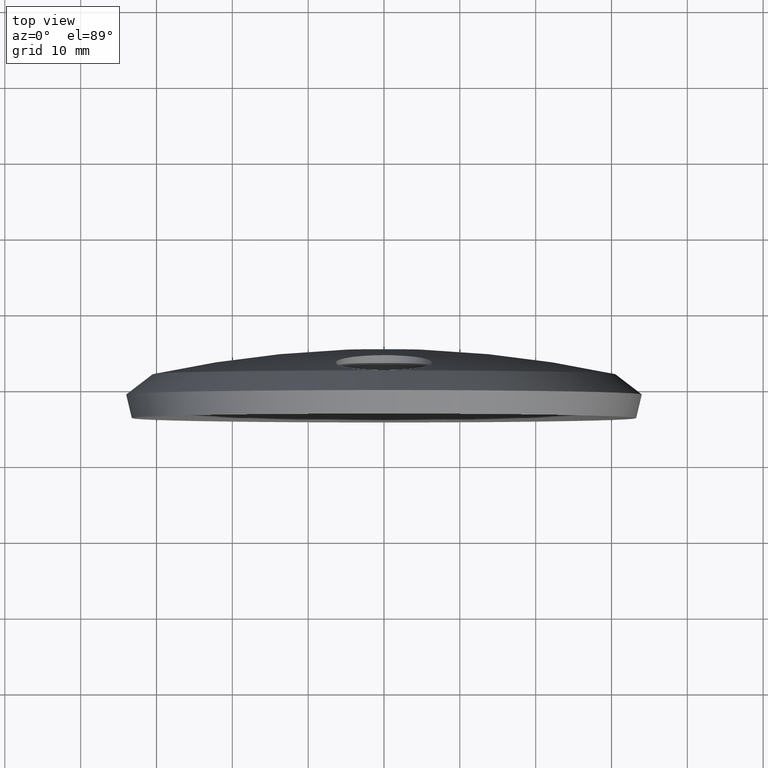
[diagram: clean part render]
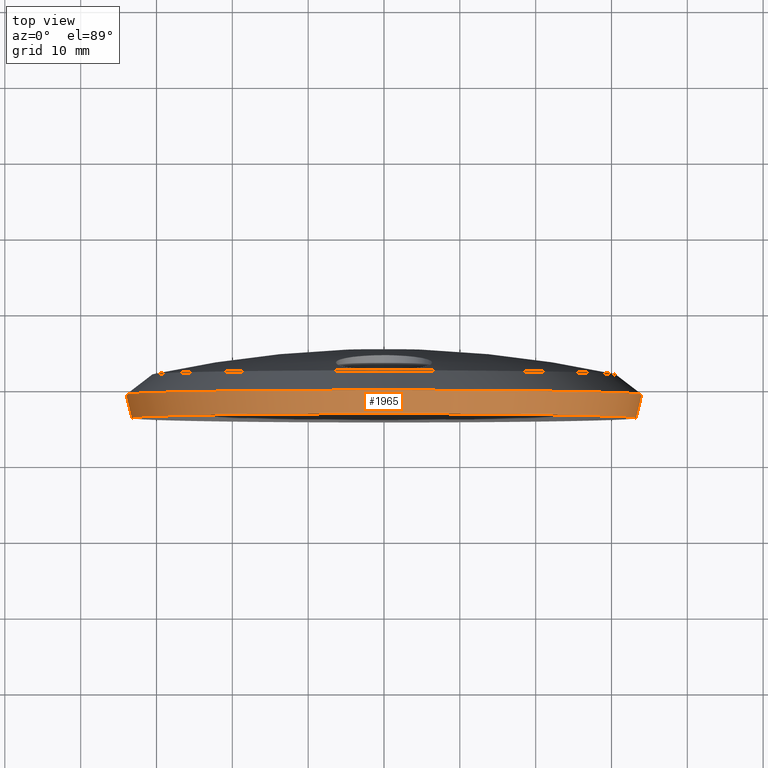
[diagram: same view with one face highlighted and labeled with its STEP entity id]
A machine part, top view. The second image highlights one B-rep face of the part: STEP entity #1965.
In plain terms, the highlighted conical surface has half-angle 13.485 deg.
Its self-contained STEP definition (entity closure, byte-faithful):
#6 = DIRECTION ( 'NONE',  ( 1.912064095349771562E-17, 1.000000000000000000, -0.000000000000000000 ) ) ;
#301 = CARTESIAN_POINT ( 'NONE',  ( 34.00000000000002842, -0.9853033424980119914, 4.163799117101003715E-15 ) ) ;
#502 = DIRECTION ( 'NONE',  ( 1.912064095349771562E-17, 1.000000000000000000, -0.000000000000000000 ) ) ;
#1068 = CARTESIAN_POINT ( 'NONE',  ( -34.00000000000002842, -0.9853033424980112143, 0.000000000000000000 ) ) ;
#1136 = CARTESIAN_POINT ( 'NONE',  ( 33.25379652918665840, -4.097084244191778524, 0.000000000000000000 ) ) ;
#1180 = VERTEX_POINT ( 'NONE', #301 ) ;
#1870 = DIRECTION ( 'NONE',  ( 0.2331885846291817943, 0.9724315317793016389, 2.855736537638291327E-17 ) ) ;
#1965 = ADVANCED_FACE ( 'NONE', ( #3638 ), #5331, .T. ) ;
#2005 = VERTEX_POINT ( 'NONE', #1136 ) ;
#2167 = VERTEX_POINT ( 'NONE', #12233 ) ;
#2296 = ORIENTED_EDGE ( 'NONE', *, *, #8031, .F. ) ;
#3299 = AXIS2_PLACEMENT_3D ( 'NONE', #5454, #502, #6378 ) ;
#3638 = FACE_OUTER_BOUND ( 'NONE', #6106, .T. ) ;
#3925 = DIRECTION ( 'NONE',  ( -1.000000000000000000, 2.608308910614538582E-17, 0.000000000000000000 ) ) ;
#3951 = EDGE_CURVE ( 'NONE', #2167, #2005, #6297, .T. ) ;
#4725 = ORIENTED_EDGE ( 'NONE', *, *, #3951, .T. ) ;
#5237 = AXIS2_PLACEMENT_3D ( 'NONE', #7053, #6, #3925 ) ;
#5331 = CONICAL_SURFACE ( 'NONE', #12874, 33.25379652918665130, 0.2353553817285153615 ) ;
#5454 = CARTESIAN_POINT ( 'NONE',  ( -1.883963144218567108E-17, -0.9853033424980115473, 0.000000000000000000 ) ) ;
#5979 = ORIENTED_EDGE ( 'NONE', *, *, #9814, .T. ) ;
#6106 = EDGE_LOOP ( 'NONE', ( #4725, #5979, #2296, #12797 ) ) ;
#6297 = CIRCLE ( 'NONE', #5237, 33.25379652918665130 ) ;
#6378 = DIRECTION ( 'NONE',  ( -1.000000000000000000, 1.913297951445006266E-17, 0.000000000000000000 ) ) ;
#6827 = LINE ( 'NONE', #11225, #11264 ) ;
#7053 = CARTESIAN_POINT ( 'NONE',  ( -7.833887678942355501E-17, -4.097084244191778524, 0.000000000000000000 ) ) ;
#7089 = DIRECTION ( 'NONE',  ( 1.912064095349771562E-17, 1.000000000000000000, -0.000000000000000000 ) ) ;
#7298 = LINE ( 'NONE', #11811, #10249 ) ;
#7559 = VERTEX_POINT ( 'NONE', #1068 ) ;
#8031 = EDGE_CURVE ( 'NONE', #7559, #1180, #11541, .T. ) ;
#9189 = CARTESIAN_POINT ( 'NONE',  ( -7.833887678942355501E-17, -4.097084244191778524, 0.000000000000000000 ) ) ;
#9814 = EDGE_CURVE ( 'NONE', #2005, #1180, #7298, .T. ) ;
#10214 = DIRECTION ( 'NONE',  ( -0.2331885846291817388, 0.9724315317793016389, 0.000000000000000000 ) ) ;
#10249 = VECTOR ( 'NONE', #1870, 1000.000000000000000 ) ;
#11047 = DIRECTION ( 'NONE',  ( -1.000000000000000000, 2.608308910614538582E-17, 0.000000000000000000 ) ) ;
#11202 = EDGE_CURVE ( 'NONE', #2167, #7559, #6827, .T. ) ;
#11225 = CARTESIAN_POINT ( 'NONE',  ( -33.25379652918665130, -4.097084244191777636, 0.000000000000000000 ) ) ;
#11264 = VECTOR ( 'NONE', #10214, 1000.000000000000000 ) ;
#11541 = CIRCLE ( 'NONE', #3299, 34.00000000000002842 ) ;
#11811 = CARTESIAN_POINT ( 'NONE',  ( 33.25379652918665130, -4.097084244191779412, 4.072415547896578944E-15 ) ) ;
#12233 = CARTESIAN_POINT ( 'NONE',  ( -33.25379652918663709, -4.097084244191778524, -4.072415547896579733E-15 ) ) ;
#12797 = ORIENTED_EDGE ( 'NONE', *, *, #11202, .F. ) ;
#12874 = AXIS2_PLACEMENT_3D ( 'NONE', #9189, #7089, #11047 ) ;